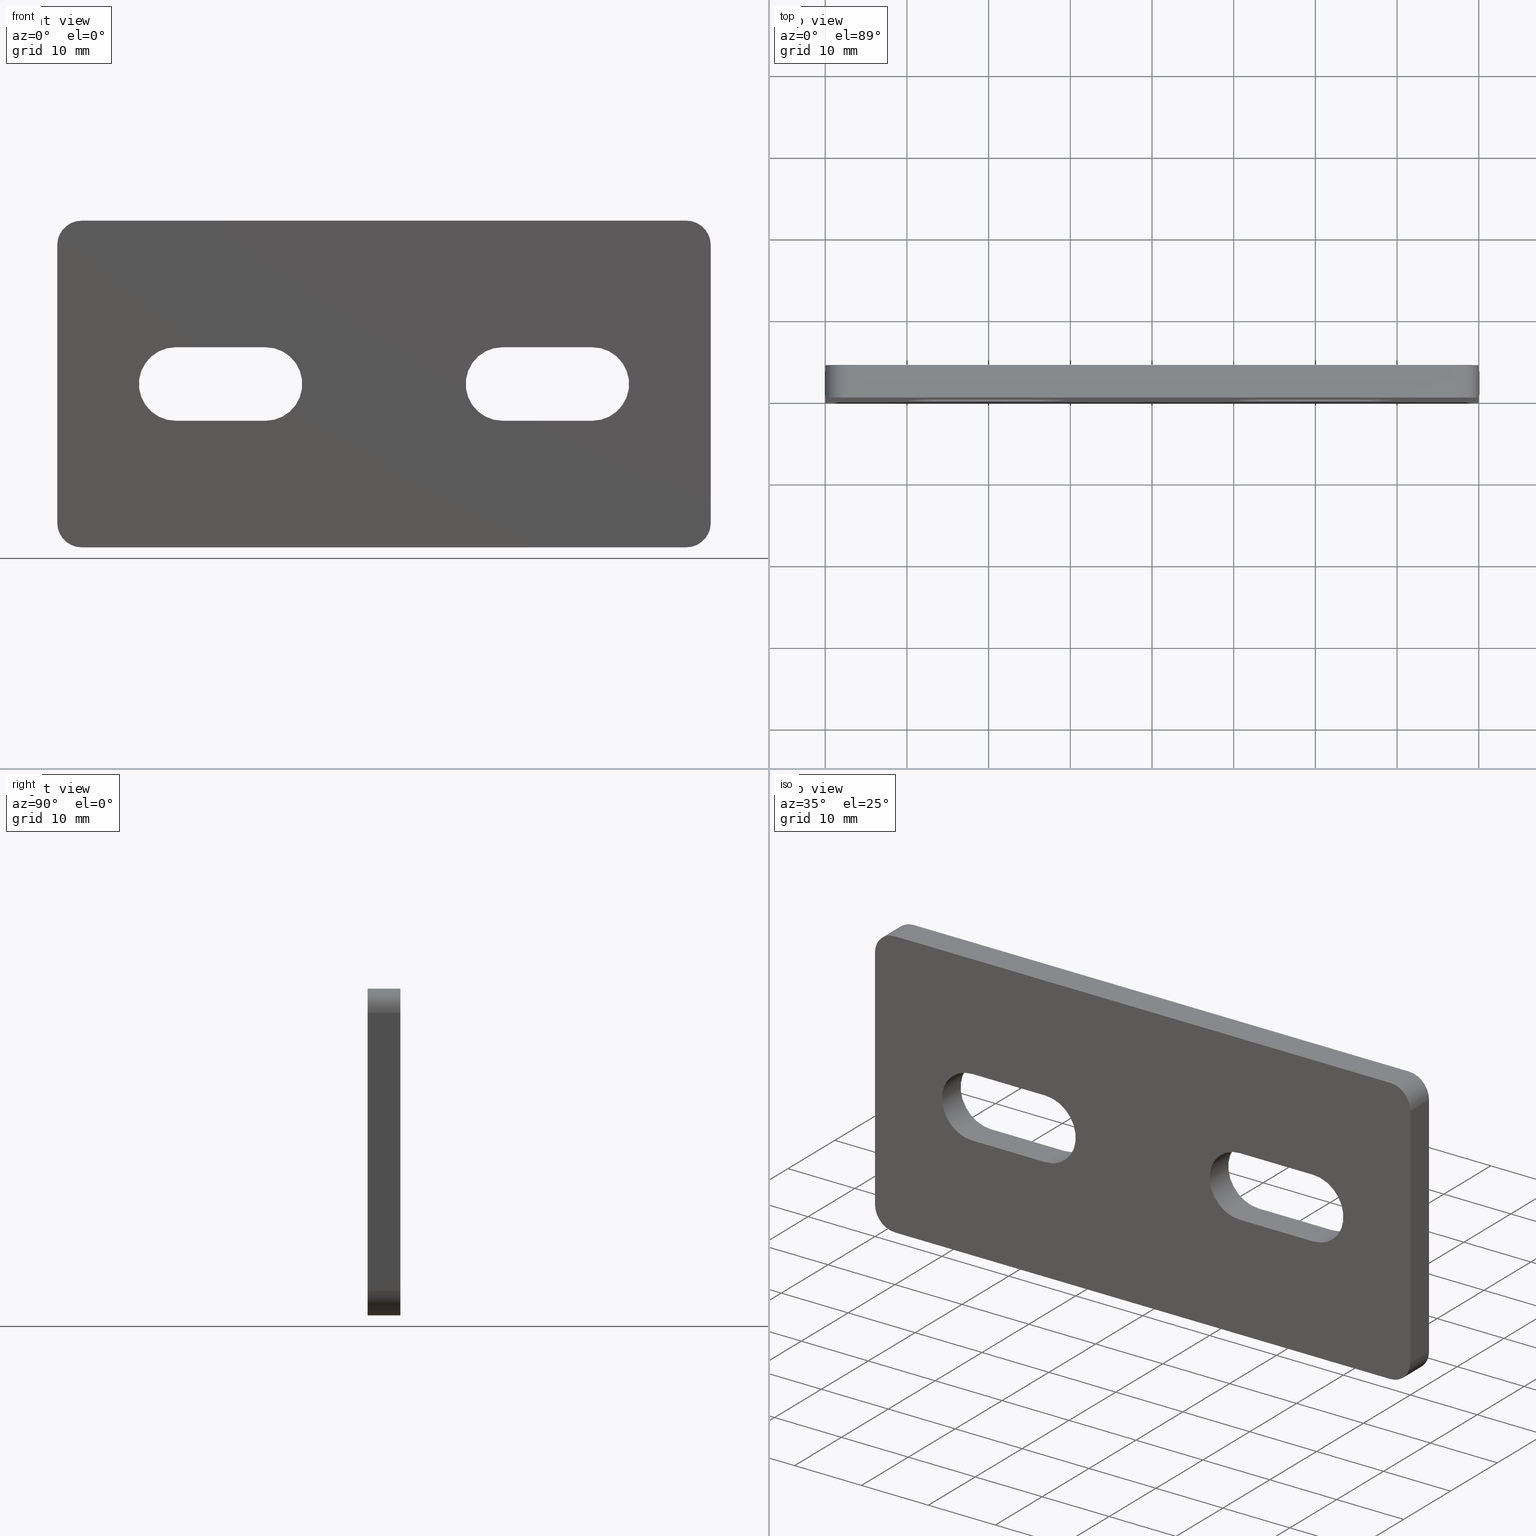
[diagram: canonical four-view strip — front | top / right | iso, engineering-drawing reading convention]
A machine part, canonical four-view strip (front | top / right | iso — engineering-drawing reading convention). The complete STEP part file that produces these views, byte-faithful:
ISO-10303-21;
HEADER;
/* Generated by software containing ST-Developer
 * from STEP Tools, Inc. (www.steptools.com) 
 */

FILE_DESCRIPTION(
/* description */ ('PIASTRA GIUNZIONE A 2 ASOLE ZINCATA'),
/* implementation_level */ '2;1');

FILE_NAME(
/* name */ 
'C:\\Users\\tecnico7\\Desktop\\tavole temporanee\\DPSXX0001708.stp',
/* time_stamp */ '2022-11-16T16:32:07+01:00',
/* author */ ('tecnico7'),
/* organization */ (''),
/* preprocessor_version */ 'ST-DEVELOPER v18.1',
/* originating_system */ 'Autodesk Inventor 2022',
/* authorisation */ '');

FILE_SCHEMA (('AUTOMOTIVE_DESIGN { 1 0 10303 214 3 1 1 }'));
ENDSEC;

DATA;
#10=MECHANICAL_DESIGN_GEOMETRIC_PRESENTATION_REPRESENTATION('',(#13),#612);
#11=SHAPE_REPRESENTATION_RELATIONSHIP('SRR','None',#619,#12);
#12=ADVANCED_BREP_SHAPE_REPRESENTATION('',(#14),#611);
#13=STYLED_ITEM('',(#628),#14);
#14=MANIFOLD_SOLID_BREP('Solido1',#351);
#15=CYLINDRICAL_SURFACE('',#396,4.5);
#16=CYLINDRICAL_SURFACE('',#398,4.5);
#17=CYLINDRICAL_SURFACE('',#400,4.5);
#18=CYLINDRICAL_SURFACE('',#402,4.5);
#19=CYLINDRICAL_SURFACE('',#404,3.);
#20=CYLINDRICAL_SURFACE('',#405,3.);
#21=CYLINDRICAL_SURFACE('',#406,3.);
#22=CYLINDRICAL_SURFACE('',#407,3.);
#23=FACE_BOUND('',#46,.T.);
#24=FACE_BOUND('',#47,.T.);
#25=FACE_BOUND('',#49,.T.);
#26=FACE_BOUND('',#50,.T.);
#27=FACE_OUTER_BOUND('',#45,.T.);
#28=FACE_OUTER_BOUND('',#48,.T.);
#29=FACE_OUTER_BOUND('',#51,.T.);
#30=FACE_OUTER_BOUND('',#52,.T.);
#31=FACE_OUTER_BOUND('',#53,.T.);
#32=FACE_OUTER_BOUND('',#54,.T.);
#33=FACE_OUTER_BOUND('',#55,.T.);
#34=FACE_OUTER_BOUND('',#56,.T.);
#35=FACE_OUTER_BOUND('',#57,.T.);
#36=FACE_OUTER_BOUND('',#58,.T.);
#37=FACE_OUTER_BOUND('',#59,.T.);
#38=FACE_OUTER_BOUND('',#60,.T.);
#39=FACE_OUTER_BOUND('',#61,.T.);
#40=FACE_OUTER_BOUND('',#62,.T.);
#41=FACE_OUTER_BOUND('',#63,.T.);
#42=FACE_OUTER_BOUND('',#64,.T.);
#43=FACE_OUTER_BOUND('',#65,.T.);
#44=FACE_OUTER_BOUND('',#66,.T.);
#45=EDGE_LOOP('',(#227,#228,#229,#230,#231,#232,#233,#234));
#46=EDGE_LOOP('',(#235,#236,#237,#238));
#47=EDGE_LOOP('',(#239,#240,#241,#242));
#48=EDGE_LOOP('',(#243,#244,#245,#246,#247,#248,#249,#250));
#49=EDGE_LOOP('',(#251,#252,#253,#254));
#50=EDGE_LOOP('',(#255,#256,#257,#258));
#51=EDGE_LOOP('',(#259,#260,#261,#262));
#52=EDGE_LOOP('',(#263,#264,#265,#266));
#53=EDGE_LOOP('',(#267,#268,#269,#270));
#54=EDGE_LOOP('',(#271,#272,#273,#274));
#55=EDGE_LOOP('',(#275,#276,#277,#278));
#56=EDGE_LOOP('',(#279,#280,#281,#282));
#57=EDGE_LOOP('',(#283,#284,#285,#286));
#58=EDGE_LOOP('',(#287,#288,#289,#290));
#59=EDGE_LOOP('',(#291,#292,#293,#294));
#60=EDGE_LOOP('',(#295,#296,#297,#298));
#61=EDGE_LOOP('',(#299,#300,#301,#302));
#62=EDGE_LOOP('',(#303,#304,#305,#306));
#63=EDGE_LOOP('',(#307,#308,#309,#310));
#64=EDGE_LOOP('',(#311,#312,#313,#314));
#65=EDGE_LOOP('',(#315,#316,#317,#318));
#66=EDGE_LOOP('',(#319,#320,#321,#322));
#67=CIRCLE('',#375,3.);
#68=CIRCLE('',#376,3.);
#69=CIRCLE('',#377,3.);
#70=CIRCLE('',#378,3.);
#71=CIRCLE('',#379,4.5);
#72=CIRCLE('',#380,4.5);
#73=CIRCLE('',#381,4.5);
#74=CIRCLE('',#382,4.5);
#75=CIRCLE('',#384,3.);
#76=CIRCLE('',#385,3.);
#77=CIRCLE('',#386,3.);
#78=CIRCLE('',#387,3.);
#79=CIRCLE('',#388,4.5);
#80=CIRCLE('',#389,4.5);
#81=CIRCLE('',#390,4.5);
#82=CIRCLE('',#391,4.5);
#83=LINE('',#514,#115);
#84=LINE('',#518,#116);
#85=LINE('',#522,#117);
#86=LINE('',#526,#118);
#87=LINE('',#532,#119);
#88=LINE('',#535,#120);
#89=LINE('',#540,#121);
#90=LINE('',#543,#122);
#91=LINE('',#547,#123);
#92=LINE('',#551,#124);
#93=LINE('',#555,#125);
#94=LINE('',#559,#126);
#95=LINE('',#563,#127);
#96=LINE('',#567,#128);
#97=LINE('',#571,#129);
#98=LINE('',#575,#130);
#99=LINE('',#578,#131);
#100=LINE('',#579,#132);
#101=LINE('',#581,#133);
#102=LINE('',#582,#134);
#103=LINE('',#584,#135);
#104=LINE('',#585,#136);
#105=LINE('',#587,#137);
#106=LINE('',#588,#138);
#107=LINE('',#590,#139);
#108=LINE('',#591,#140);
#109=LINE('',#593,#141);
#110=LINE('',#595,#142);
#111=LINE('',#598,#143);
#112=LINE('',#599,#144);
#113=LINE('',#601,#145);
#114=LINE('',#603,#146);
#115=VECTOR('',#412,1000.);
#116=VECTOR('',#415,1000.);
#117=VECTOR('',#418,1000.);
#118=VECTOR('',#421,1000.);
#119=VECTOR('',#426,1000.);
#120=VECTOR('',#429,1000.);
#121=VECTOR('',#432,1000.);
#122=VECTOR('',#435,1000.);
#123=VECTOR('',#438,1000.);
#124=VECTOR('',#441,1000.);
#125=VECTOR('',#444,1000.);
#126=VECTOR('',#447,1000.);
#127=VECTOR('',#450,1000.);
#128=VECTOR('',#453,1000.);
#129=VECTOR('',#456,1000.);
#130=VECTOR('',#459,1000.);
#131=VECTOR('',#464,1000.);
#132=VECTOR('',#465,1000.);
#133=VECTOR('',#468,1000.);
#134=VECTOR('',#469,1000.);
#135=VECTOR('',#472,1000.);
#136=VECTOR('',#473,1000.);
#137=VECTOR('',#476,1000.);
#138=VECTOR('',#477,1000.);
#139=VECTOR('',#480,1000.);
#140=VECTOR('',#481,1000.);
#141=VECTOR('',#484,1000.);
#142=VECTOR('',#487,1000.);
#143=VECTOR('',#492,1000.);
#144=VECTOR('',#493,1000.);
#145=VECTOR('',#496,1000.);
#146=VECTOR('',#499,1000.);
#147=VERTEX_POINT('',#512);
#148=VERTEX_POINT('',#513);
#149=VERTEX_POINT('',#515);
#150=VERTEX_POINT('',#517);
#151=VERTEX_POINT('',#519);
#152=VERTEX_POINT('',#521);
#153=VERTEX_POINT('',#523);
#154=VERTEX_POINT('',#525);
#155=VERTEX_POINT('',#528);
#156=VERTEX_POINT('',#529);
#157=VERTEX_POINT('',#531);
#158=VERTEX_POINT('',#533);
#159=VERTEX_POINT('',#536);
#160=VERTEX_POINT('',#537);
#161=VERTEX_POINT('',#539);
#162=VERTEX_POINT('',#541);
#163=VERTEX_POINT('',#545);
#164=VERTEX_POINT('',#546);
#165=VERTEX_POINT('',#548);
#166=VERTEX_POINT('',#550);
#167=VERTEX_POINT('',#552);
#168=VERTEX_POINT('',#554);
#169=VERTEX_POINT('',#556);
#170=VERTEX_POINT('',#558);
#171=VERTEX_POINT('',#561);
#172=VERTEX_POINT('',#562);
#173=VERTEX_POINT('',#564);
#174=VERTEX_POINT('',#566);
#175=VERTEX_POINT('',#569);
#176=VERTEX_POINT('',#570);
#177=VERTEX_POINT('',#572);
#178=VERTEX_POINT('',#574);
#179=EDGE_CURVE('',#147,#148,#83,.T.);
#180=EDGE_CURVE('',#148,#149,#67,.T.);
#181=EDGE_CURVE('',#149,#150,#84,.T.);
#182=EDGE_CURVE('',#150,#151,#68,.T.);
#183=EDGE_CURVE('',#151,#152,#85,.T.);
#184=EDGE_CURVE('',#152,#153,#69,.T.);
#185=EDGE_CURVE('',#153,#154,#86,.T.);
#186=EDGE_CURVE('',#154,#147,#70,.T.);
#187=EDGE_CURVE('',#155,#156,#71,.T.);
#188=EDGE_CURVE('',#157,#155,#87,.T.);
#189=EDGE_CURVE('',#158,#157,#72,.T.);
#190=EDGE_CURVE('',#156,#158,#88,.T.);
#191=EDGE_CURVE('',#159,#160,#73,.T.);
#192=EDGE_CURVE('',#161,#159,#89,.T.);
#193=EDGE_CURVE('',#162,#161,#74,.T.);
#194=EDGE_CURVE('',#160,#162,#90,.T.);
#195=EDGE_CURVE('',#163,#164,#91,.T.);
#196=EDGE_CURVE('',#163,#165,#75,.T.);
#197=EDGE_CURVE('',#166,#165,#92,.T.);
#198=EDGE_CURVE('',#166,#167,#76,.T.);
#199=EDGE_CURVE('',#168,#167,#93,.T.);
#200=EDGE_CURVE('',#168,#169,#77,.T.);
#201=EDGE_CURVE('',#170,#169,#94,.T.);
#202=EDGE_CURVE('',#170,#164,#78,.T.);
#203=EDGE_CURVE('',#171,#172,#95,.T.);
#204=EDGE_CURVE('',#172,#173,#79,.T.);
#205=EDGE_CURVE('',#173,#174,#96,.T.);
#206=EDGE_CURVE('',#174,#171,#80,.T.);
#207=EDGE_CURVE('',#175,#176,#97,.T.);
#208=EDGE_CURVE('',#176,#177,#81,.T.);
#209=EDGE_CURVE('',#177,#178,#98,.T.);
#210=EDGE_CURVE('',#178,#175,#82,.T.);
#211=EDGE_CURVE('',#149,#163,#99,.T.);
#212=EDGE_CURVE('',#164,#150,#100,.T.);
#213=EDGE_CURVE('',#169,#152,#101,.T.);
#214=EDGE_CURVE('',#151,#170,#102,.T.);
#215=EDGE_CURVE('',#167,#154,#103,.T.);
#216=EDGE_CURVE('',#153,#168,#104,.T.);
#217=EDGE_CURVE('',#165,#148,#105,.T.);
#218=EDGE_CURVE('',#147,#166,#106,.T.);
#219=EDGE_CURVE('',#159,#176,#107,.T.);
#220=EDGE_CURVE('',#160,#177,#108,.T.);
#221=EDGE_CURVE('',#162,#178,#109,.T.);
#222=EDGE_CURVE('',#161,#175,#110,.T.);
#223=EDGE_CURVE('',#155,#172,#111,.T.);
#224=EDGE_CURVE('',#156,#173,#112,.T.);
#225=EDGE_CURVE('',#158,#174,#113,.T.);
#226=EDGE_CURVE('',#157,#171,#114,.T.);
#227=ORIENTED_EDGE('',*,*,#179,.T.);
#228=ORIENTED_EDGE('',*,*,#180,.T.);
#229=ORIENTED_EDGE('',*,*,#181,.T.);
#230=ORIENTED_EDGE('',*,*,#182,.T.);
#231=ORIENTED_EDGE('',*,*,#183,.T.);
#232=ORIENTED_EDGE('',*,*,#184,.T.);
#233=ORIENTED_EDGE('',*,*,#185,.T.);
#234=ORIENTED_EDGE('',*,*,#186,.T.);
#235=ORIENTED_EDGE('',*,*,#187,.F.);
#236=ORIENTED_EDGE('',*,*,#188,.F.);
#237=ORIENTED_EDGE('',*,*,#189,.F.);
#238=ORIENTED_EDGE('',*,*,#190,.F.);
#239=ORIENTED_EDGE('',*,*,#191,.F.);
#240=ORIENTED_EDGE('',*,*,#192,.F.);
#241=ORIENTED_EDGE('',*,*,#193,.F.);
#242=ORIENTED_EDGE('',*,*,#194,.F.);
#243=ORIENTED_EDGE('',*,*,#195,.F.);
#244=ORIENTED_EDGE('',*,*,#196,.T.);
#245=ORIENTED_EDGE('',*,*,#197,.F.);
#246=ORIENTED_EDGE('',*,*,#198,.T.);
#247=ORIENTED_EDGE('',*,*,#199,.F.);
#248=ORIENTED_EDGE('',*,*,#200,.T.);
#249=ORIENTED_EDGE('',*,*,#201,.F.);
#250=ORIENTED_EDGE('',*,*,#202,.T.);
#251=ORIENTED_EDGE('',*,*,#203,.T.);
#252=ORIENTED_EDGE('',*,*,#204,.T.);
#253=ORIENTED_EDGE('',*,*,#205,.T.);
#254=ORIENTED_EDGE('',*,*,#206,.T.);
#255=ORIENTED_EDGE('',*,*,#207,.T.);
#256=ORIENTED_EDGE('',*,*,#208,.T.);
#257=ORIENTED_EDGE('',*,*,#209,.T.);
#258=ORIENTED_EDGE('',*,*,#210,.T.);
#259=ORIENTED_EDGE('',*,*,#181,.F.);
#260=ORIENTED_EDGE('',*,*,#211,.T.);
#261=ORIENTED_EDGE('',*,*,#195,.T.);
#262=ORIENTED_EDGE('',*,*,#212,.T.);
#263=ORIENTED_EDGE('',*,*,#201,.T.);
#264=ORIENTED_EDGE('',*,*,#213,.T.);
#265=ORIENTED_EDGE('',*,*,#183,.F.);
#266=ORIENTED_EDGE('',*,*,#214,.T.);
#267=ORIENTED_EDGE('',*,*,#199,.T.);
#268=ORIENTED_EDGE('',*,*,#215,.T.);
#269=ORIENTED_EDGE('',*,*,#185,.F.);
#270=ORIENTED_EDGE('',*,*,#216,.T.);
#271=ORIENTED_EDGE('',*,*,#197,.T.);
#272=ORIENTED_EDGE('',*,*,#217,.T.);
#273=ORIENTED_EDGE('',*,*,#179,.F.);
#274=ORIENTED_EDGE('',*,*,#218,.T.);
#275=ORIENTED_EDGE('',*,*,#208,.F.);
#276=ORIENTED_EDGE('',*,*,#219,.F.);
#277=ORIENTED_EDGE('',*,*,#191,.T.);
#278=ORIENTED_EDGE('',*,*,#220,.T.);
#279=ORIENTED_EDGE('',*,*,#209,.F.);
#280=ORIENTED_EDGE('',*,*,#220,.F.);
#281=ORIENTED_EDGE('',*,*,#194,.T.);
#282=ORIENTED_EDGE('',*,*,#221,.T.);
#283=ORIENTED_EDGE('',*,*,#210,.F.);
#284=ORIENTED_EDGE('',*,*,#221,.F.);
#285=ORIENTED_EDGE('',*,*,#193,.T.);
#286=ORIENTED_EDGE('',*,*,#222,.T.);
#287=ORIENTED_EDGE('',*,*,#207,.F.);
#288=ORIENTED_EDGE('',*,*,#222,.F.);
#289=ORIENTED_EDGE('',*,*,#192,.T.);
#290=ORIENTED_EDGE('',*,*,#219,.T.);
#291=ORIENTED_EDGE('',*,*,#204,.F.);
#292=ORIENTED_EDGE('',*,*,#223,.F.);
#293=ORIENTED_EDGE('',*,*,#187,.T.);
#294=ORIENTED_EDGE('',*,*,#224,.T.);
#295=ORIENTED_EDGE('',*,*,#205,.F.);
#296=ORIENTED_EDGE('',*,*,#224,.F.);
#297=ORIENTED_EDGE('',*,*,#190,.T.);
#298=ORIENTED_EDGE('',*,*,#225,.T.);
#299=ORIENTED_EDGE('',*,*,#206,.F.);
#300=ORIENTED_EDGE('',*,*,#225,.F.);
#301=ORIENTED_EDGE('',*,*,#189,.T.);
#302=ORIENTED_EDGE('',*,*,#226,.T.);
#303=ORIENTED_EDGE('',*,*,#203,.F.);
#304=ORIENTED_EDGE('',*,*,#226,.F.);
#305=ORIENTED_EDGE('',*,*,#188,.T.);
#306=ORIENTED_EDGE('',*,*,#223,.T.);
#307=ORIENTED_EDGE('',*,*,#180,.F.);
#308=ORIENTED_EDGE('',*,*,#217,.F.);
#309=ORIENTED_EDGE('',*,*,#196,.F.);
#310=ORIENTED_EDGE('',*,*,#211,.F.);
#311=ORIENTED_EDGE('',*,*,#186,.F.);
#312=ORIENTED_EDGE('',*,*,#215,.F.);
#313=ORIENTED_EDGE('',*,*,#198,.F.);
#314=ORIENTED_EDGE('',*,*,#218,.F.);
#315=ORIENTED_EDGE('',*,*,#184,.F.);
#316=ORIENTED_EDGE('',*,*,#213,.F.);
#317=ORIENTED_EDGE('',*,*,#200,.F.);
#318=ORIENTED_EDGE('',*,*,#216,.F.);
#319=ORIENTED_EDGE('',*,*,#182,.F.);
#320=ORIENTED_EDGE('',*,*,#212,.F.);
#321=ORIENTED_EDGE('',*,*,#202,.F.);
#322=ORIENTED_EDGE('',*,*,#214,.F.);
#323=PLANE('',#374);
#324=PLANE('',#383);
#325=PLANE('',#392);
#326=PLANE('',#393);
#327=PLANE('',#394);
#328=PLANE('',#395);
#329=PLANE('',#397);
#330=PLANE('',#399);
#331=PLANE('',#401);
#332=PLANE('',#403);
#333=ADVANCED_FACE('',(#27,#23,#24),#323,.F.);
#334=ADVANCED_FACE('',(#28,#25,#26),#324,.T.);
#335=ADVANCED_FACE('',(#29),#325,.F.);
#336=ADVANCED_FACE('',(#30),#326,.F.);
#337=ADVANCED_FACE('',(#31),#327,.F.);
#338=ADVANCED_FACE('',(#32),#328,.F.);
#339=ADVANCED_FACE('',(#33),#15,.F.);
#340=ADVANCED_FACE('',(#34),#329,.T.);
#341=ADVANCED_FACE('',(#35),#16,.F.);
#342=ADVANCED_FACE('',(#36),#330,.T.);
#343=ADVANCED_FACE('',(#37),#17,.F.);
#344=ADVANCED_FACE('',(#38),#331,.T.);
#345=ADVANCED_FACE('',(#39),#18,.F.);
#346=ADVANCED_FACE('',(#40),#332,.T.);
#347=ADVANCED_FACE('',(#41),#19,.T.);
#348=ADVANCED_FACE('',(#42),#20,.T.);
#349=ADVANCED_FACE('',(#43),#21,.T.);
#350=ADVANCED_FACE('',(#44),#22,.T.);
#351=CLOSED_SHELL('',(#333,#334,#335,#336,#337,#338,#339,#340,#341,#342,
#343,#344,#345,#346,#347,#348,#349,#350));
#352=DERIVED_UNIT_ELEMENT(#355,1.);
#353=DERIVED_UNIT_ELEMENT(#614,-3.);
#354=DIMENSIONAL_EXPONENTS(1.,0.,0.,0.,0.,0.,0.);
#355=(
CONVERSION_BASED_UNIT('gram',#357)
MASS_UNIT()
NAMED_UNIT(#354)
);
#356=(
MASS_UNIT()
NAMED_UNIT(*)
SI_UNIT(.KILO.,.GRAM.)
);
#357=MASS_MEASURE_WITH_UNIT(MASS_MEASURE(0.001),#356);
#358=DERIVED_UNIT((#352,#353));
#359=MEASURE_REPRESENTATION_ITEM('density measure',
POSITIVE_RATIO_MEASURE(7.85),#358);
#360=PROPERTY_DEFINITION_REPRESENTATION(#365,#362);
#361=PROPERTY_DEFINITION_REPRESENTATION(#366,#363);
#362=REPRESENTATION('material name',(#364),#611);
#363=REPRESENTATION('density',(#359),#611);
#364=DESCRIPTIVE_REPRESENTATION_ITEM('Acciaio S235JR','Acciaio S235JR');
#365=PROPERTY_DEFINITION('material property','material name',#621);
#366=PROPERTY_DEFINITION('material property','density of part',#621);
#367=DATE_TIME_ROLE('creation_date');
#368=APPLIED_DATE_AND_TIME_ASSIGNMENT(#369,#367,(#621));
#369=DATE_AND_TIME(#370,#371);
#370=CALENDAR_DATE(2015,7,10);
#371=LOCAL_TIME(0,0,0.,#372);
#372=COORDINATED_UNIVERSAL_TIME_OFFSET(0,0,.BEHIND.);
#373=AXIS2_PLACEMENT_3D('placement',#510,#408,#409);
#374=AXIS2_PLACEMENT_3D('',#511,#410,#411);
#375=AXIS2_PLACEMENT_3D('',#516,#413,#414);
#376=AXIS2_PLACEMENT_3D('',#520,#416,#417);
#377=AXIS2_PLACEMENT_3D('',#524,#419,#420);
#378=AXIS2_PLACEMENT_3D('',#527,#422,#423);
#379=AXIS2_PLACEMENT_3D('',#530,#424,#425);
#380=AXIS2_PLACEMENT_3D('',#534,#427,#428);
#381=AXIS2_PLACEMENT_3D('',#538,#430,#431);
#382=AXIS2_PLACEMENT_3D('',#542,#433,#434);
#383=AXIS2_PLACEMENT_3D('',#544,#436,#437);
#384=AXIS2_PLACEMENT_3D('',#549,#439,#440);
#385=AXIS2_PLACEMENT_3D('',#553,#442,#443);
#386=AXIS2_PLACEMENT_3D('',#557,#445,#446);
#387=AXIS2_PLACEMENT_3D('',#560,#448,#449);
#388=AXIS2_PLACEMENT_3D('',#565,#451,#452);
#389=AXIS2_PLACEMENT_3D('',#568,#454,#455);
#390=AXIS2_PLACEMENT_3D('',#573,#457,#458);
#391=AXIS2_PLACEMENT_3D('',#576,#460,#461);
#392=AXIS2_PLACEMENT_3D('',#577,#462,#463);
#393=AXIS2_PLACEMENT_3D('',#580,#466,#467);
#394=AXIS2_PLACEMENT_3D('',#583,#470,#471);
#395=AXIS2_PLACEMENT_3D('',#586,#474,#475);
#396=AXIS2_PLACEMENT_3D('',#589,#478,#479);
#397=AXIS2_PLACEMENT_3D('',#592,#482,#483);
#398=AXIS2_PLACEMENT_3D('',#594,#485,#486);
#399=AXIS2_PLACEMENT_3D('',#596,#488,#489);
#400=AXIS2_PLACEMENT_3D('',#597,#490,#491);
#401=AXIS2_PLACEMENT_3D('',#600,#494,#495);
#402=AXIS2_PLACEMENT_3D('',#602,#497,#498);
#403=AXIS2_PLACEMENT_3D('',#604,#500,#501);
#404=AXIS2_PLACEMENT_3D('',#605,#502,#503);
#405=AXIS2_PLACEMENT_3D('',#606,#504,#505);
#406=AXIS2_PLACEMENT_3D('',#607,#506,#507);
#407=AXIS2_PLACEMENT_3D('',#608,#508,#509);
#408=DIRECTION('axis',(0.,0.,1.));
#409=DIRECTION('refdir',(1.,0.,0.));
#410=DIRECTION('center_axis',(0.,-1.,0.));
#411=DIRECTION('ref_axis',(0.,0.,-1.));
#412=DIRECTION('',(-1.,0.,0.));
#413=DIRECTION('center_axis',(0.,1.,0.));
#414=DIRECTION('ref_axis',(0.,0.,-1.));
#415=DIRECTION('',(0.,0.,1.));
#416=DIRECTION('center_axis',(0.,1.,0.));
#417=DIRECTION('ref_axis',(0.,0.,-1.));
#418=DIRECTION('',(1.,0.,0.));
#419=DIRECTION('center_axis',(0.,1.,0.));
#420=DIRECTION('ref_axis',(0.,0.,-1.));
#421=DIRECTION('',(0.,0.,-1.));
#422=DIRECTION('center_axis',(0.,1.,0.));
#423=DIRECTION('ref_axis',(0.,0.,-1.));
#424=DIRECTION('center_axis',(0.,1.,0.));
#425=DIRECTION('ref_axis',(0.,0.,-1.));
#426=DIRECTION('',(-1.,0.,0.));
#427=DIRECTION('center_axis',(0.,1.,0.));
#428=DIRECTION('ref_axis',(0.,0.,-1.));
#429=DIRECTION('',(1.,0.,0.));
#430=DIRECTION('center_axis',(0.,1.,0.));
#431=DIRECTION('ref_axis',(0.,0.,1.));
#432=DIRECTION('',(1.,0.,0.));
#433=DIRECTION('center_axis',(0.,1.,0.));
#434=DIRECTION('ref_axis',(0.,0.,1.));
#435=DIRECTION('',(-1.,0.,0.));
#436=DIRECTION('center_axis',(0.,-1.,0.));
#437=DIRECTION('ref_axis',(0.,0.,-1.));
#438=DIRECTION('',(0.,0.,1.));
#439=DIRECTION('center_axis',(0.,-1.,0.));
#440=DIRECTION('ref_axis',(0.,0.,-1.));
#441=DIRECTION('',(-1.,0.,0.));
#442=DIRECTION('center_axis',(0.,-1.,0.));
#443=DIRECTION('ref_axis',(0.,0.,-1.));
#444=DIRECTION('',(0.,0.,-1.));
#445=DIRECTION('center_axis',(0.,-1.,0.));
#446=DIRECTION('ref_axis',(0.,0.,-1.));
#447=DIRECTION('',(1.,0.,0.));
#448=DIRECTION('center_axis',(0.,-1.,0.));
#449=DIRECTION('ref_axis',(0.,0.,-1.));
#450=DIRECTION('',(-1.,0.,0.));
#451=DIRECTION('center_axis',(0.,1.,0.));
#452=DIRECTION('ref_axis',(0.,0.,-1.));
#453=DIRECTION('',(1.,0.,0.));
#454=DIRECTION('center_axis',(0.,1.,0.));
#455=DIRECTION('ref_axis',(0.,0.,-1.));
#456=DIRECTION('',(1.,0.,0.));
#457=DIRECTION('center_axis',(0.,1.,0.));
#458=DIRECTION('ref_axis',(0.,0.,1.));
#459=DIRECTION('',(-1.,0.,0.));
#460=DIRECTION('center_axis',(0.,1.,0.));
#461=DIRECTION('ref_axis',(0.,0.,1.));
#462=DIRECTION('center_axis',(1.,0.,0.));
#463=DIRECTION('ref_axis',(0.,0.,-1.));
#464=DIRECTION('',(0.,-1.,0.));
#465=DIRECTION('',(0.,1.,0.));
#466=DIRECTION('center_axis',(0.,0.,-1.));
#467=DIRECTION('ref_axis',(-1.,0.,0.));
#468=DIRECTION('',(0.,1.,0.));
#469=DIRECTION('',(0.,-1.,0.));
#470=DIRECTION('center_axis',(-1.,0.,0.));
#471=DIRECTION('ref_axis',(0.,0.,1.));
#472=DIRECTION('',(0.,1.,0.));
#473=DIRECTION('',(0.,-1.,0.));
#474=DIRECTION('center_axis',(0.,0.,1.));
#475=DIRECTION('ref_axis',(1.,0.,0.));
#476=DIRECTION('',(0.,1.,0.));
#477=DIRECTION('',(0.,-1.,0.));
#478=DIRECTION('center_axis',(0.,-1.,0.));
#479=DIRECTION('ref_axis',(0.,0.,-1.));
#480=DIRECTION('',(0.,-1.,0.));
#481=DIRECTION('',(0.,-1.,0.));
#482=DIRECTION('center_axis',(0.,0.,1.));
#483=DIRECTION('ref_axis',(1.,0.,0.));
#484=DIRECTION('',(0.,-1.,0.));
#485=DIRECTION('center_axis',(0.,-1.,0.));
#486=DIRECTION('ref_axis',(0.,0.,-1.));
#487=DIRECTION('',(0.,-1.,0.));
#488=DIRECTION('center_axis',(0.,0.,-1.));
#489=DIRECTION('ref_axis',(-1.,0.,0.));
#490=DIRECTION('center_axis',(0.,-1.,0.));
#491=DIRECTION('ref_axis',(0.,0.,-1.));
#492=DIRECTION('',(0.,-1.,0.));
#493=DIRECTION('',(0.,-1.,0.));
#494=DIRECTION('center_axis',(0.,0.,-1.));
#495=DIRECTION('ref_axis',(-1.,0.,0.));
#496=DIRECTION('',(0.,-1.,0.));
#497=DIRECTION('center_axis',(0.,-1.,0.));
#498=DIRECTION('ref_axis',(0.,0.,-1.));
#499=DIRECTION('',(0.,-1.,0.));
#500=DIRECTION('center_axis',(0.,0.,1.));
#501=DIRECTION('ref_axis',(1.,0.,0.));
#502=DIRECTION('center_axis',(0.,-1.,0.));
#503=DIRECTION('ref_axis',(0.,0.,-1.));
#504=DIRECTION('center_axis',(0.,-1.,0.));
#505=DIRECTION('ref_axis',(0.,0.,-1.));
#506=DIRECTION('center_axis',(0.,-1.,0.));
#507=DIRECTION('ref_axis',(0.,0.,-1.));
#508=DIRECTION('center_axis',(0.,-1.,0.));
#509=DIRECTION('ref_axis',(0.,0.,-1.));
#510=CARTESIAN_POINT('',(0.,0.,0.));
#511=CARTESIAN_POINT('Origin',(-40.,4.,-20.));
#512=CARTESIAN_POINT('',(37.,4.,-20.));
#513=CARTESIAN_POINT('',(-37.,4.,-20.));
#514=CARTESIAN_POINT('',(-40.,4.,-20.));
#515=CARTESIAN_POINT('',(-40.,4.,-17.));
#516=CARTESIAN_POINT('Origin',(-37.,4.,-17.));
#517=CARTESIAN_POINT('',(-40.,4.,17.));
#518=CARTESIAN_POINT('',(-40.,4.,20.));
#519=CARTESIAN_POINT('',(-37.,4.,20.));
#520=CARTESIAN_POINT('Origin',(-37.,4.,17.));
#521=CARTESIAN_POINT('',(37.,4.,20.));
#522=CARTESIAN_POINT('',(-40.,4.,20.));
#523=CARTESIAN_POINT('',(40.,4.,17.));
#524=CARTESIAN_POINT('Origin',(37.,4.,17.));
#525=CARTESIAN_POINT('',(40.,4.,-17.));
#526=CARTESIAN_POINT('',(40.,4.,20.));
#527=CARTESIAN_POINT('Origin',(37.,4.,-17.));
#528=CARTESIAN_POINT('',(14.5,4.,-4.5));
#529=CARTESIAN_POINT('',(14.5,4.,4.5));
#530=CARTESIAN_POINT('Origin',(14.5,4.,0.));
#531=CARTESIAN_POINT('',(25.5,4.,-4.5));
#532=CARTESIAN_POINT('',(14.5,4.,-4.5));
#533=CARTESIAN_POINT('',(25.5,4.,4.5));
#534=CARTESIAN_POINT('Origin',(25.5,4.,0.));
#535=CARTESIAN_POINT('',(25.5,4.,4.5));
#536=CARTESIAN_POINT('',(-14.5,4.,4.5));
#537=CARTESIAN_POINT('',(-14.5,4.,-4.5));
#538=CARTESIAN_POINT('Origin',(-14.5,4.,0.));
#539=CARTESIAN_POINT('',(-25.5,4.,4.5));
#540=CARTESIAN_POINT('',(-25.5,4.,4.5));
#541=CARTESIAN_POINT('',(-25.5,4.,-4.5));
#542=CARTESIAN_POINT('Origin',(-25.5,4.,0.));
#543=CARTESIAN_POINT('',(-14.5,4.,-4.5));
#544=CARTESIAN_POINT('Origin',(-40.,0.,-20.));
#545=CARTESIAN_POINT('',(-40.,0.,-17.));
#546=CARTESIAN_POINT('',(-40.,0.,17.));
#547=CARTESIAN_POINT('',(-40.,0.,20.));
#548=CARTESIAN_POINT('',(-37.,0.,-20.));
#549=CARTESIAN_POINT('Origin',(-37.,0.,-17.));
#550=CARTESIAN_POINT('',(37.,0.,-20.));
#551=CARTESIAN_POINT('',(-40.,0.,-20.));
#552=CARTESIAN_POINT('',(40.,0.,-17.));
#553=CARTESIAN_POINT('Origin',(37.,0.,-17.));
#554=CARTESIAN_POINT('',(40.,0.,17.));
#555=CARTESIAN_POINT('',(40.,0.,20.));
#556=CARTESIAN_POINT('',(37.,0.,20.));
#557=CARTESIAN_POINT('Origin',(37.,0.,17.));
#558=CARTESIAN_POINT('',(-37.,0.,20.));
#559=CARTESIAN_POINT('',(-40.,0.,20.));
#560=CARTESIAN_POINT('Origin',(-37.,0.,17.));
#561=CARTESIAN_POINT('',(25.5,0.,-4.5));
#562=CARTESIAN_POINT('',(14.5,0.,-4.5));
#563=CARTESIAN_POINT('',(14.5,0.,-4.5));
#564=CARTESIAN_POINT('',(14.5,0.,4.5));
#565=CARTESIAN_POINT('Origin',(14.5,0.,0.));
#566=CARTESIAN_POINT('',(25.5,0.,4.5));
#567=CARTESIAN_POINT('',(25.5,0.,4.5));
#568=CARTESIAN_POINT('Origin',(25.5,0.,0.));
#569=CARTESIAN_POINT('',(-25.5,0.,4.5));
#570=CARTESIAN_POINT('',(-14.5,0.,4.5));
#571=CARTESIAN_POINT('',(-25.5,0.,4.5));
#572=CARTESIAN_POINT('',(-14.5,0.,-4.5));
#573=CARTESIAN_POINT('Origin',(-14.5,0.,0.));
#574=CARTESIAN_POINT('',(-25.5,0.,-4.5));
#575=CARTESIAN_POINT('',(-14.5,0.,-4.5));
#576=CARTESIAN_POINT('Origin',(-25.5,0.,0.));
#577=CARTESIAN_POINT('Origin',(-40.,4.,20.));
#578=CARTESIAN_POINT('',(-40.,4.,-17.));
#579=CARTESIAN_POINT('',(-40.,4.,17.));
#580=CARTESIAN_POINT('Origin',(-40.,4.,20.));
#581=CARTESIAN_POINT('',(37.,4.,20.));
#582=CARTESIAN_POINT('',(-37.,4.,20.));
#583=CARTESIAN_POINT('Origin',(40.,4.,20.));
#584=CARTESIAN_POINT('',(40.,4.,-17.));
#585=CARTESIAN_POINT('',(40.,4.,17.));
#586=CARTESIAN_POINT('Origin',(-40.,4.,-20.));
#587=CARTESIAN_POINT('',(-37.,4.,-20.));
#588=CARTESIAN_POINT('',(37.,4.,-20.));
#589=CARTESIAN_POINT('Origin',(-14.5,4.,0.));
#590=CARTESIAN_POINT('',(-14.5,4.,4.5));
#591=CARTESIAN_POINT('',(-14.5,4.,-4.5));
#592=CARTESIAN_POINT('Origin',(-14.5,4.,-4.5));
#593=CARTESIAN_POINT('',(-25.5,4.,-4.5));
#594=CARTESIAN_POINT('Origin',(-25.5,4.,0.));
#595=CARTESIAN_POINT('',(-25.5,4.,4.5));
#596=CARTESIAN_POINT('Origin',(-25.5,4.,4.5));
#597=CARTESIAN_POINT('Origin',(14.5,4.,0.));
#598=CARTESIAN_POINT('',(14.5,4.,-4.5));
#599=CARTESIAN_POINT('',(14.5,4.,4.5));
#600=CARTESIAN_POINT('Origin',(25.5,4.,4.5));
#601=CARTESIAN_POINT('',(25.5,4.,4.5));
#602=CARTESIAN_POINT('Origin',(25.5,4.,0.));
#603=CARTESIAN_POINT('',(25.5,4.,-4.5));
#604=CARTESIAN_POINT('Origin',(14.5,4.,-4.5));
#605=CARTESIAN_POINT('Origin',(-37.,4.,-17.));
#606=CARTESIAN_POINT('Origin',(37.,4.,-17.));
#607=CARTESIAN_POINT('Origin',(37.,4.,17.));
#608=CARTESIAN_POINT('Origin',(-37.,4.,17.));
#609=UNCERTAINTY_MEASURE_WITH_UNIT(LENGTH_MEASURE(0.01),#613,
'DISTANCE_ACCURACY_VALUE',
'Maximum model space distance between geometric entities at asserted c
onnectivities');
#610=UNCERTAINTY_MEASURE_WITH_UNIT(LENGTH_MEASURE(0.01),#613,
'DISTANCE_ACCURACY_VALUE',
'Maximum model space distance between geometric entities at asserted c
onnectivities');
#611=(
GEOMETRIC_REPRESENTATION_CONTEXT(3)
GLOBAL_UNCERTAINTY_ASSIGNED_CONTEXT((#609))
GLOBAL_UNIT_ASSIGNED_CONTEXT((#613,#615,#616))
REPRESENTATION_CONTEXT('','3D')
);
#612=(
GEOMETRIC_REPRESENTATION_CONTEXT(3)
GLOBAL_UNCERTAINTY_ASSIGNED_CONTEXT((#610))
GLOBAL_UNIT_ASSIGNED_CONTEXT((#613,#615,#616))
REPRESENTATION_CONTEXT('','3D')
);
#613=(
LENGTH_UNIT()
NAMED_UNIT(*)
SI_UNIT(.MILLI.,.METRE.)
);
#614=(
LENGTH_UNIT()
NAMED_UNIT(*)
SI_UNIT(.CENTI.,.METRE.)
);
#615=(
NAMED_UNIT(*)
PLANE_ANGLE_UNIT()
SI_UNIT($,.RADIAN.)
);
#616=(
NAMED_UNIT(*)
SI_UNIT($,.STERADIAN.)
SOLID_ANGLE_UNIT()
);
#617=SHAPE_DEFINITION_REPRESENTATION(#618,#619);
#618=PRODUCT_DEFINITION_SHAPE('',$,#621);
#619=SHAPE_REPRESENTATION('',(#373),#611);
#620=PRODUCT_DEFINITION_CONTEXT('part definition',#625,'design');
#621=PRODUCT_DEFINITION('DPSXX0001708','DPSXX0001708',#622,#620);
#622=PRODUCT_DEFINITION_FORMATION('A',$,#627);
#623=PRODUCT_RELATED_PRODUCT_CATEGORY('DPSXX0001708','DPSXX0001708',(#627));
#624=APPLICATION_PROTOCOL_DEFINITION('international standard',
'automotive_design',2009,#625);
#625=APPLICATION_CONTEXT(
'Core Data for Automotive Mechanical Design Process');
#626=PRODUCT_CONTEXT('part definition',#625,'mechanical');
#627=PRODUCT('DPSXX0001708','DPSXX0001708',
'PIASTRA GIUNZIONE A 2 ASOLE ZINCATA',(#626));
#628=PRESENTATION_STYLE_ASSIGNMENT((#629));
#629=SURFACE_STYLE_USAGE(.BOTH.,#632);
#630=SURFACE_STYLE_RENDERING_WITH_PROPERTIES($,#636,(#631));
#631=SURFACE_STYLE_TRANSPARENT(0.);
#632=SURFACE_SIDE_STYLE('',(#633,#630));
#633=SURFACE_STYLE_FILL_AREA(#634);
#634=FILL_AREA_STYLE('',(#635));
#635=FILL_AREA_STYLE_COLOUR('',#636);
#636=COLOUR_RGB('',0.83921568627451,0.886274509803922,0.854901960784314);
ENDSEC;
END-ISO-10303-21;
